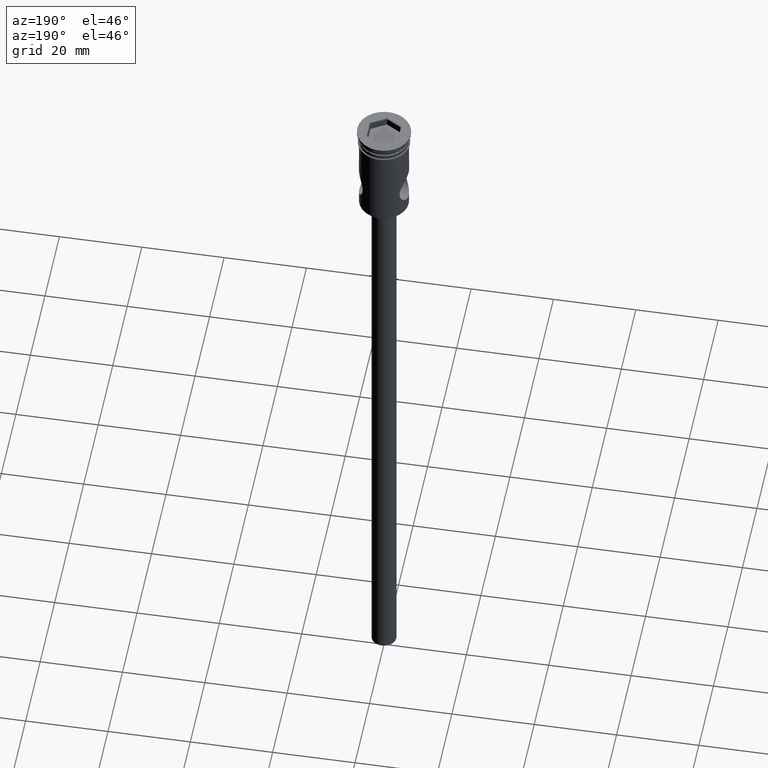
[diagram: clean part render]
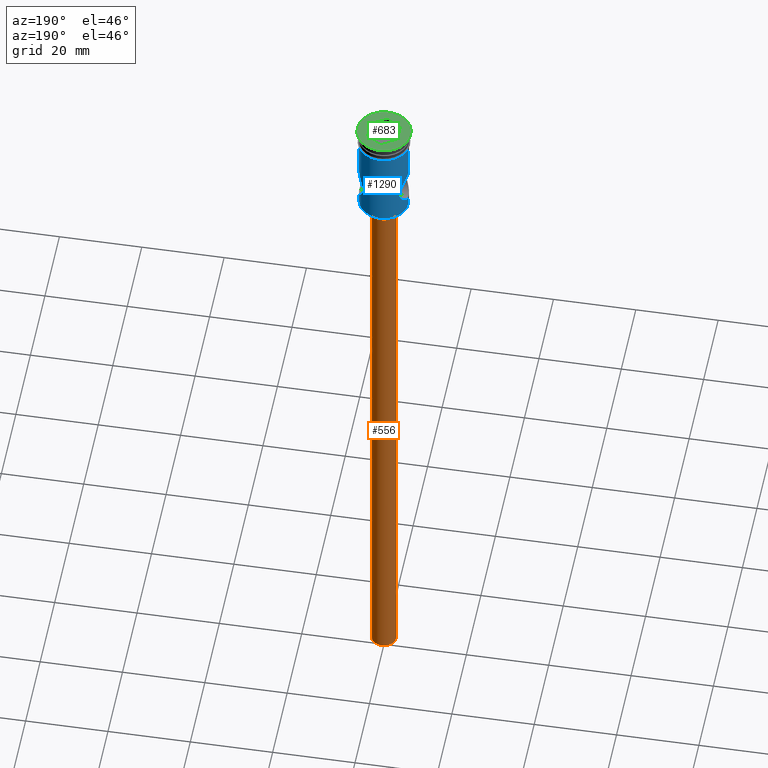
[diagram: same view with three faces highlighted in distinct colors, each labeled with its STEP entity id]
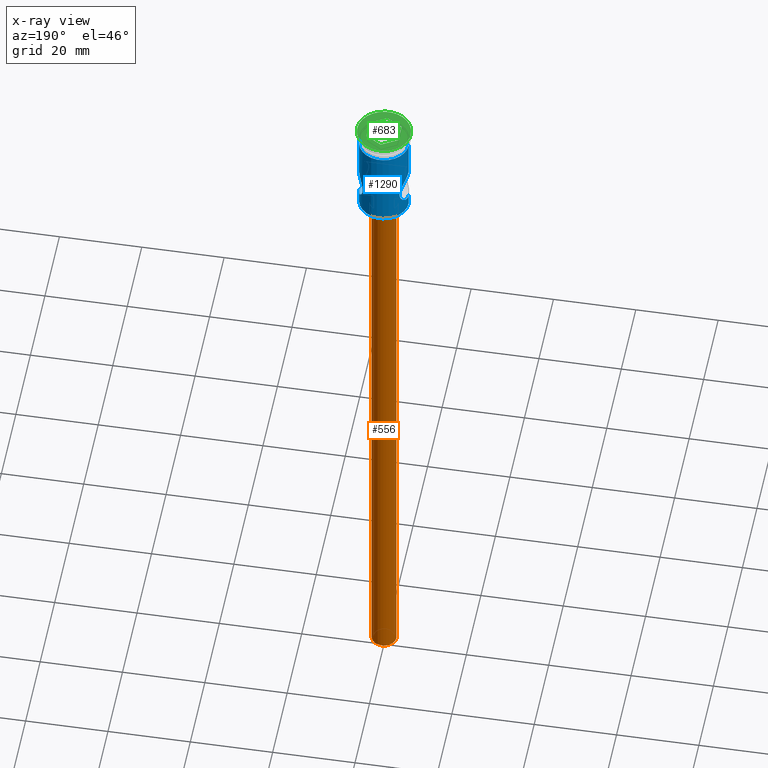
[diagram: x-ray of the same camera — body ghosted, the three highlighted faces saturated]
A machine part, auxiliary view with three faces highlighted in distinct colors.
The next image is the same camera in x-ray (body ghosted, the three faces saturated) — at least one of them is partly hidden behind the body in this view.
Their STEP definitions:

[orange] entity #556 — the highlighted cylindrical surface (edge-blend (fillet) strip) has radius 3 mm, axis along (-0, -0, 1).
#102 = AXIS2_PLACEMENT_3D ( 'NONE', #692, #599, #1062 ) ;
#104 = DIRECTION ( 'NONE',  ( 0.000000000000000000, 0.000000000000000000, -1.000000000000000000 ) ) ;
#202 = VERTEX_POINT ( 'NONE', #1242 ) ;
#206 = ORIENTED_EDGE ( 'NONE', *, *, #236, .T. ) ;
#208 = FACE_OUTER_BOUND ( 'NONE', #972, .T. ) ;
#236 = EDGE_CURVE ( 'NONE', #867, #1194, #950, .T. ) ;
#242 = ORIENTED_EDGE ( 'NONE', *, *, #1357, .F. ) ;
#243 = VECTOR ( 'NONE', #890, 1000.000000000000000 ) ;
#244 = CIRCLE ( 'NONE', #102, 3.000000000000000444 ) ;
#511 = DIRECTION ( 'NONE',  ( -0.000000000000000000, -0.000000000000000000, 1.000000000000000000 ) ) ;
#556 = ADVANCED_FACE ( 'NONE', ( #208 ), #1470, .T. ) ;
#590 = DIRECTION ( 'NONE',  ( -0.000000000000000000, -0.000000000000000000, 1.000000000000000000 ) ) ;
#599 = DIRECTION ( 'NONE',  ( 0.000000000000000000, 0.000000000000000000, -1.000000000000000000 ) ) ;
#673 = CARTESIAN_POINT ( 'NONE',  ( 0.000000000000000000, 0.000000000000000000, -174.0000000000000000 ) ) ;
#692 = CARTESIAN_POINT ( 'NONE',  ( 0.000000000000000000, 0.000000000000000000, -174.0000000000000000 ) ) ;
#737 = AXIS2_PLACEMENT_3D ( 'NONE', #673, #590, #1075 ) ;
#750 = CARTESIAN_POINT ( 'NONE',  ( -3.000000000000000444, 3.673940397442060361E-16, -174.0000000000000000 ) ) ;
#765 = VECTOR ( 'NONE', #511, 1000.000000000000000 ) ;
#802 = VERTEX_POINT ( 'NONE', #996 ) ;
#867 = VERTEX_POINT ( 'NONE', #1130 ) ;
#890 = DIRECTION ( 'NONE',  ( -0.000000000000000000, -0.000000000000000000, 1.000000000000000000 ) ) ;
#900 = EDGE_CURVE ( 'NONE', #802, #1194, #1336, .T. ) ;
#905 = ORIENTED_EDGE ( 'NONE', *, *, #1129, .T. ) ;
#950 = CIRCLE ( 'NONE', #1225, 3.000000000000000444 ) ;
#971 = ORIENTED_EDGE ( 'NONE', *, *, #900, .F. ) ;
#972 = EDGE_LOOP ( 'NONE', ( #242, #905, #206, #971 ) ) ;
#996 = CARTESIAN_POINT ( 'NONE',  ( 3.000000000000000444, 0.000000000000000000, -174.0000000000000000 ) ) ;
#1014 = DIRECTION ( 'NONE',  ( -1.000000000000000000, 0.000000000000000000, 0.000000000000000000 ) ) ;
#1062 = DIRECTION ( 'NONE',  ( -1.000000000000000000, 0.000000000000000000, 0.000000000000000000 ) ) ;
#1075 = DIRECTION ( 'NONE',  ( 1.000000000000000000, 0.000000000000000000, 0.000000000000000000 ) ) ;
#1129 = EDGE_CURVE ( 'NONE', #202, #867, #1289, .T. ) ;
#1130 = CARTESIAN_POINT ( 'NONE',  ( -3.000000000000000444, 3.673940397442060361E-16, -27.00000000000000000 ) ) ;
#1194 = VERTEX_POINT ( 'NONE', #1413 ) ;
#1225 = AXIS2_PLACEMENT_3D ( 'NONE', #1347, #104, #1014 ) ;
#1242 = CARTESIAN_POINT ( 'NONE',  ( -3.000000000000000444, 3.673940397442060361E-16, -174.0000000000000000 ) ) ;
#1289 = LINE ( 'NONE', #750, #765 ) ;
#1336 = LINE ( 'NONE', #1462, #243 ) ;
#1347 = CARTESIAN_POINT ( 'NONE',  ( 0.000000000000000000, 0.000000000000000000, -27.00000000000000000 ) ) ;
#1357 = EDGE_CURVE ( 'NONE', #202, #802, #244, .T. ) ;
#1413 = CARTESIAN_POINT ( 'NONE',  ( 3.000000000000000444, 0.000000000000000000, -27.00000000000000000 ) ) ;
#1462 = CARTESIAN_POINT ( 'NONE',  ( 3.000000000000000444, 0.000000000000000000, -174.0000000000000000 ) ) ;
#1470 = CYLINDRICAL_SURFACE ( 'NONE', #737, 3.000000000000000444 ) ;

[blue] entity #1290 — the highlighted cylindrical surface (edge-blend (fillet) strip) has radius 6 mm, axis along (-0, -0, 1).
#1 = CARTESIAN_POINT ( 'NONE',  ( 5.092719808373194823, 3.176950723007529120, -19.44358897106424067 ) ) ;
#31 = LINE ( 'NONE', #254, #240 ) ;
#36 = CARTESIAN_POINT ( 'NONE',  ( -5.478456530086702081, 2.457412205291201968, -20.16652278763330486 ) ) ;
#42 = CARTESIAN_POINT ( 'NONE',  ( -5.856852607584092318, 1.326405963621358985, -20.78272040109924745 ) ) ;
#51 = EDGE_CURVE ( 'NONE', #1027, #128, #97, .T. ) ;
#73 = EDGE_CURVE ( 'NONE', #1027, #741, #31, .T. ) ;
#88 = CARTESIAN_POINT ( 'NONE',  ( 4.904334778770656378, 3.460699021627383409, -14.97811247933654322 ) ) ;
#91 = CARTESIAN_POINT ( 'NONE',  ( -5.094941177298608181, 3.173493986384487542, -19.44836001449217733 ) ) ;
#96 = CARTESIAN_POINT ( 'NONE',  ( 5.999999999999999112, 0.1348394930680404946, -13.00000000000000355 ) ) ;
#97 = CIRCLE ( 'NONE', #429, 5.999999999999997335 ) ;
#128 = VERTEX_POINT ( 'NONE', #615 ) ;
#132 = CARTESIAN_POINT ( 'NONE',  ( 0.000000000000000000, 0.000000000000000000, -23.80000000000000782 ) ) ;
#136 = CARTESIAN_POINT ( 'NONE',  ( 6.000000000000000000, 0.000000000000000000, -3.799999999999998490 ) ) ;
#145 = DIRECTION ( 'NONE',  ( -1.000000000000000000, 0.000000000000000000, 0.000000000000000000 ) ) ;
#169 = VECTOR ( 'NONE', #238, 1000.000000000000000 ) ;
#174 = ORIENTED_EDGE ( 'NONE', *, *, #51, .T. ) ;
#186 = CARTESIAN_POINT ( 'NONE',  ( -5.909894408226808338, 1.069461442341117507, -13.13625666965422134 ) ) ;
#196 = CARTESIAN_POINT ( 'NONE',  ( 5.999999999999997335, 1.032865049536733409E-19, -13.00000000000000178 ) ) ;
#198 = CARTESIAN_POINT ( 'NONE',  ( 0.000000000000000000, 0.000000000000000000, -3.799999999999998490 ) ) ;
#207 = CARTESIAN_POINT ( 'NONE',  ( 5.191849950367996236, 3.014242200430726992, -19.64164800058794214 ) ) ;
#225 = CARTESIAN_POINT ( 'NONE',  ( 4.591041808995887763, 3.863597314276563388, -18.06934695620068965 ) ) ;
#238 = DIRECTION ( 'NONE',  ( -0.000000000000000000, -0.000000000000000000, 1.000000000000000000 ) ) ;
#240 = VECTOR ( 'NONE', #711, 1000.000000000000000 ) ;
#254 = CARTESIAN_POINT ( 'NONE',  ( 5.999999999999997335, 0.000000000000000000, 0.000000000000000000 ) ) ;
#266 = LINE ( 'NONE', #1428, #1309 ) ;
#268 = CARTESIAN_POINT ( 'NONE',  ( -4.903670365680999232, 3.461664301119384834, -14.97966456857567685 ) ) ;
#269 = EDGE_LOOP ( 'NONE', ( #174, #1397, #1084, #1442, #1307, #1405, #298, #1363 ) ) ;
#276 = CARTESIAN_POINT ( 'NONE',  ( -4.695721265758814766, 3.735538961856250673, -15.56388279734573032 ) ) ;
#291 = CARTESIAN_POINT ( 'NONE',  ( -5.981295349059706723, 0.5428679769166538938, -13.02790298971888028 ) ) ;
#298 = ORIENTED_EDGE ( 'NONE', *, *, #1233, .F. ) ;
#300 = FACE_OUTER_BOUND ( 'NONE', #269, .T. ) ;
#309 = CARTESIAN_POINT ( 'NONE',  ( 5.995459719443724467, 0.2695386314927124549, -13.00680060135633376 ) ) ;
#317 = CARTESIAN_POINT ( 'NONE',  ( -5.192588128681414616, 3.012973207551337129, -19.64309212195293952 ) ) ;
#321 = CARTESIAN_POINT ( 'NONE',  ( 5.476259375248750061, 2.462490082215233578, -20.16276605017705492 ) ) ;
#325 = VERTEX_POINT ( 'NONE', #418 ) ;
#329 = CARTESIAN_POINT ( 'NONE',  ( 4.904969006695426792, 3.459781783056854465, -19.02337662573056321 ) ) ;
#340 = CARTESIAN_POINT ( 'NONE',  ( -4.497954016143988376, 3.971583117973677801, -17.54574033674491318 ) ) ;
#364 = EDGE_CURVE ( 'NONE', #823, #453, #1124, .T. ) ;
#392 = LINE ( 'NONE', #1296, #1162 ) ;
#400 = DIRECTION ( 'NONE',  ( -0.000000000000000000, -0.000000000000000000, 1.000000000000000000 ) ) ;
#418 = CARTESIAN_POINT ( 'NONE',  ( 5.999999999999997335, 1.032865049536733409E-19, -13.00000000000000178 ) ) ;
#424 = CYLINDRICAL_SURFACE ( 'NONE', #1163, 5.999999999999997335 ) ;
#429 = AXIS2_PLACEMENT_3D ( 'NONE', #132, #1172, #145 ) ;
#431 = CARTESIAN_POINT ( 'NONE',  ( 5.726539468168462044, 1.808257897405588066, -13.42234802356430556 ) ) ;
#432 = CARTESIAN_POINT ( 'NONE',  ( -5.189877563605834965, 3.017637752822129205, -14.36220871751616635 ) ) ;
#453 = VERTEX_POINT ( 'NONE', #940 ) ;
#459 = CARTESIAN_POINT ( 'NONE',  ( -4.566410052139553422, 3.892191516930989970, -16.06790164049536074 ) ) ;
#472 = LINE ( 'NONE', #1278, #169 ) ;
#496 = CARTESIAN_POINT ( 'NONE',  ( -5.910224399078535029, 1.067455424808948061, -20.86424616908553276 ) ) ;
#505 = CARTESIAN_POINT ( 'NONE',  ( 5.999999999999997335, 0.000000000000000000, -21.00000000000000355 ) ) ;
#506 = CARTESIAN_POINT ( 'NONE',  ( 5.999999999999997335, 0.000000000000000000, -21.00000000000000355 ) ) ;
#522 = CARTESIAN_POINT ( 'NONE',  ( -5.726042320256659046, 1.810021776766353563, -13.42313354859388497 ) ) ;
#530 = CARTESIAN_POINT ( 'NONE',  ( 0.000000000000000000, 0.000000000000000000, 0.000000000000000000 ) ) ;
#534 = CARTESIAN_POINT ( 'NONE',  ( 4.589371484154252556, 3.865580797907775423, -15.93709879797100193 ) ) ;
#553 = CARTESIAN_POINT ( 'NONE',  ( 5.383657517074641241, 2.656633614838565194, -13.99882376761189029 ) ) ;
#558 = CARTESIAN_POINT ( 'NONE',  ( 4.521451790501867407, 3.944329598407792847, -17.67822252913732228 ) ) ;
#562 = CARTESIAN_POINT ( 'NONE',  ( -4.471969905858020233, 4.000185648662160531, -16.72948623710962224 ) ) ;
#572 = CARTESIAN_POINT ( 'NONE',  ( -4.905092851350609351, 3.459704293921746832, -19.02385203036241279 ) ) ;
#592 = EDGE_CURVE ( 'NONE', #1020, #843, #1288, .T. ) ;
#607 = CARTESIAN_POINT ( 'NONE',  ( -5.726721313513245981, 1.807412029573770118, -20.57793071042114619 ) ) ;
#615 = CARTESIAN_POINT ( 'NONE',  ( -5.999999999999997335, 7.347880794884116778E-16, -23.80000000000000782 ) ) ;
#636 = CARTESIAN_POINT ( 'NONE',  ( -5.857856019569840811, 1.322596816769210371, -13.21570480751897314 ) ) ;
#641 = AXIS2_PLACEMENT_3D ( 'NONE', #198, #400, #1446 ) ;
#653 = EDGE_CURVE ( 'NONE', #325, #1020, #392, .T. ) ;
#655 = CARTESIAN_POINT ( 'NONE',  ( 4.472242783135714106, 3.999880562432159614, -17.13916142668632858 ) ) ;
#662 = CARTESIAN_POINT ( 'NONE',  ( 5.647456945233584769, 2.039167636317595456, -13.54932708310013645 ) ) ;
#679 = CARTESIAN_POINT ( 'NONE',  ( 5.857601659980624653, 1.323462767520508176, -13.21610827440704128 ) ) ;
#688 = CARTESIAN_POINT ( 'NONE',  ( -4.815345988703960245, 3.581725270876521705, -18.79943117160748400 ) ) ;
#711 = DIRECTION ( 'NONE',  ( -0.000000000000000000, -0.000000000000000000, 1.000000000000000000 ) ) ;
#724 = CARTESIAN_POINT ( 'NONE',  ( -5.649709804834211369, 2.033012498713174576, -20.45435978024745438 ) ) ;
#741 = VERTEX_POINT ( 'NONE', #506 ) ;
#743 = EDGE_CURVE ( 'NONE', #823, #843, #266, .T. ) ;
#745 = DIRECTION ( 'NONE',  ( -0.000000000000000000, -0.000000000000000000, 1.000000000000000000 ) ) ;
#747 = CARTESIAN_POINT ( 'NONE',  ( -5.092437400807711789, 3.177449308448081489, -14.55690956341038245 ) ) ;
#758 = CARTESIAN_POINT ( 'NONE',  ( 4.658800709564930642, 3.783111596241941488, -18.32471878455886838 ) ) ;
#767 = CARTESIAN_POINT ( 'NONE',  ( 4.655957912614350214, 3.786615440986035974, -15.68502588106870199 ) ) ;
#768 = CARTESIAN_POINT ( 'NONE',  ( -5.476104105474132844, 2.462661959051749783, -13.83753213007002181 ) ) ;
#773 = CARTESIAN_POINT ( 'NONE',  ( 4.496571596818668581, 3.973146032982571185, -16.46466415118837645 ) ) ;
#797 = CARTESIAN_POINT ( 'NONE',  ( -4.590872927876621823, 3.863799755992654905, -18.06881075205813403 ) ) ;
#803 = B_SPLINE_CURVE_WITH_KNOTS ( 'NONE', 3,
 ( #505, #964, #1308, #1240, #1000, #1021, #1349, #321, #1127, #207, #1, #329, #1223, #758, #225, #558, #895, #1008, #655, #1121, #773, #534, #767, #870, #88, #1358, #1258, #553, #1146, #662, #431, #679, #1473, #1016, #888, #309, #96, #196 ),
 .UNSPECIFIED., .F., .F.,
 ( 4, 2, 2, 2, 2, 2, 2, 2, 2, 2, 2, 2, 2, 2, 2, 2, 2, 2, 4 ),
 ( 0.000000000000000000, 0.0008079931812297244925, 0.001615986362459448551, 0.002423979543689172393, 0.003231972724918896669, 0.004039965906148620944, 0.004847959087378344786, 0.005655952268608070363, 0.006059948859222932284, 0.006463945449837794205, 0.007271938631067518047, 0.008079931812297241889, 0.008887924993526967465, 0.009695918174756691307, 0.01050391135598641688, 0.01131190453721614073, 0.01211989771844586630, 0.01252389430906072736, 0.01292789089967558841 ),
 .UNSPECIFIED. ) ;
#823 = VERTEX_POINT ( 'NONE', #1024 ) ;
#826 = CARTESIAN_POINT ( 'NONE',  ( -5.383857059222176389, 2.656136703825481504, -20.00147985586160004 ) ) ;
#843 = VERTEX_POINT ( 'NONE', #1351 ) ;
#847 = DIRECTION ( 'NONE',  ( -0.000000000000000000, -0.000000000000000000, 1.000000000000000000 ) ) ;
#870 = CARTESIAN_POINT ( 'NONE',  ( 4.813287987224462938, 3.584502662014734664, -15.20585560854699558 ) ) ;
#888 = CARTESIAN_POINT ( 'NONE',  ( 5.977293684551372444, 0.5386543696670914594, -13.03412758888618939 ) ) ;
#895 = CARTESIAN_POINT ( 'NONE',  ( 4.503329929757906136, 3.964891535778145570, -17.54583673630848750 ) ) ;
#897 = CARTESIAN_POINT ( 'NONE',  ( -4.472303672293369559, 3.999812486286544289, -17.27597643780235259 ) ) ;
#940 = CARTESIAN_POINT ( 'NONE',  ( -5.999999999999997335, 0.000000000000000000, -21.00000000000000000 ) ) ;
#964 = CARTESIAN_POINT ( 'NONE',  ( 5.999999999999996447, 0.2736934833754733898, -21.00000000000001066 ) ) ;
#969 = CARTESIAN_POINT ( 'NONE',  ( -5.999999999999999112, 0.2733318867810531350, -21.00000000000000000 ) ) ;
#995 = DIRECTION ( 'NONE',  ( -0.000000000000000000, -0.000000000000000000, 1.000000000000000000 ) ) ;
#1000 = CARTESIAN_POINT ( 'NONE',  ( 5.857462785930378502, 1.323879775164644279, -20.78366906037870621 ) ) ;
#1008 = CARTESIAN_POINT ( 'NONE',  ( 4.478683235531862650, 3.992711086781057350, -17.27669624262845005 ) ) ;
#1016 = CARTESIAN_POINT ( 'NONE',  ( 5.963516332756118032, 0.6739983983561916858, -13.05488329690675364 ) ) ;
#1020 = VERTEX_POINT ( 'NONE', #136 ) ;
#1021 = CARTESIAN_POINT ( 'NONE',  ( 5.726993910597675708, 1.806673378235915450, -20.57837121075087694 ) ) ;
#1024 = CARTESIAN_POINT ( 'NONE',  ( -5.999999999999997335, 7.346847929928983029E-16, -13.00000000000000178 ) ) ;
#1027 = VERTEX_POINT ( 'NONE', #1065 ) ;
#1065 = CARTESIAN_POINT ( 'NONE',  ( 5.999999999999997335, 0.000000000000000000, -23.80000000000000782 ) ) ;
#1084 = ORIENTED_EDGE ( 'NONE', *, *, #364, .F. ) ;
#1098 = CARTESIAN_POINT ( 'NONE',  ( -5.999999999999997335, 0.000000000000000000, -21.00000000000000000 ) ) ;
#1121 = CARTESIAN_POINT ( 'NONE',  ( 4.471926352484667966, 4.000234342895624629, -16.73210661165612123 ) ) ;
#1123 = CARTESIAN_POINT ( 'NONE',  ( -4.658564655011904421, 3.783396392401493724, -18.32386562586674827 ) ) ;
#1124 = B_SPLINE_CURVE_WITH_KNOTS ( 'NONE', 3,
 ( #1320, #1328, #291, #186, #636, #522, #1224, #768, #1460, #432, #747, #268, #1417, #276, #1203, #1157, #459, #1464, #562, #897, #340, #797, #1123, #688, #572, #91, #317, #826, #36, #724, #607, #42, #496, #1219, #969, #1098 ),
 .UNSPECIFIED., .F., .F.,
 ( 4, 2, 2, 2, 2, 2, 2, 2, 2, 2, 2, 2, 2, 2, 2, 2, 2, 4 ),
 ( 0.01292789089967558668, 0.01373481658167571492, 0.01454174226367584317, 0.01534866794567596969, 0.01615559362767609794, 0.01696251930967622445, 0.01776944499167635444, 0.01817290783267641943, 0.01857637067367648442, 0.01938329635567661441, 0.02019022203767674092, 0.02099714771967687091, 0.02180407340167700089, 0.02261099908367712741, 0.02341792476567725739, 0.02422485044767738738, 0.02503177612967751736, 0.02583870181167764735 ),
 .UNSPECIFIED. ) ;
#1127 = CARTESIAN_POINT ( 'NONE',  ( 5.383168773068585544, 2.657528158016941866, -20.00025070472699440 ) ) ;
#1146 = CARTESIAN_POINT ( 'NONE',  ( 5.476434227958205447, 2.461837270032280145, -13.83697842493742947 ) ) ;
#1157 = CARTESIAN_POINT ( 'NONE',  ( -4.594981970458708709, 3.858589710197853240, -15.93762721160692664 ) ) ;
#1162 = VECTOR ( 'NONE', #847, 1000.000000000000000 ) ;
#1163 = AXIS2_PLACEMENT_3D ( 'NONE', #530, #995, #1452 ) ;
#1172 = DIRECTION ( 'NONE',  ( -0.000000000000000000, -0.000000000000000000, 1.000000000000000000 ) ) ;
#1203 = CARTESIAN_POINT ( 'NONE',  ( -4.659573210257435427, 3.780337466250410561, -15.68607491293214729 ) ) ;
#1219 = CARTESIAN_POINT ( 'NONE',  ( -5.981315622377779029, 0.5422886287917135784, -20.97212570072114346 ) ) ;
#1223 = CARTESIAN_POINT ( 'NONE',  ( 4.815777407978871771, 3.581151401136684953, -18.80060207983888887 ) ) ;
#1224 = CARTESIAN_POINT ( 'NONE',  ( -5.647852088979878005, 2.038182248857265844, -13.54866401616081362 ) ) ;
#1233 = EDGE_CURVE ( 'NONE', #741, #325, #803, .T. ) ;
#1240 = CARTESIAN_POINT ( 'NONE',  ( 5.910558363407836246, 1.065472474882099840, -20.86475527808674713 ) ) ;
#1258 = CARTESIAN_POINT ( 'NONE',  ( 5.191140967328530031, 3.015547360259486442, -14.35969034782403853 ) ) ;
#1278 = CARTESIAN_POINT ( 'NONE',  ( -5.999999999999997335, 7.347880794884116778E-16, 0.000000000000000000 ) ) ;
#1288 = CIRCLE ( 'NONE', #641, 6.000000000000000000 ) ;
#1290 = ADVANCED_FACE ( 'NONE', ( #300 ), #424, .T. ) ;
#1296 = CARTESIAN_POINT ( 'NONE',  ( 5.999999999999997335, 0.000000000000000000, 0.000000000000000000 ) ) ;
#1307 = ORIENTED_EDGE ( 'NONE', *, *, #592, .F. ) ;
#1308 = CARTESIAN_POINT ( 'NONE',  ( 5.981377723958400061, 0.5413430384848008092, -20.97221760090189591 ) ) ;
#1309 = VECTOR ( 'NONE', #745, 1000.000000000000000 ) ;
#1320 = CARTESIAN_POINT ( 'NONE',  ( -5.999999999999997335, 7.346847929928983029E-16, -13.00000000000000178 ) ) ;
#1328 = CARTESIAN_POINT ( 'NONE',  ( -5.999999999999998224, 0.2693226933892789443, -13.00000000000000178 ) ) ;
#1345 = EDGE_CURVE ( 'NONE', #128, #453, #472, .T. ) ;
#1349 = CARTESIAN_POINT ( 'NONE',  ( 5.649252793255032934, 2.034506580944977827, -20.45365450866940193 ) ) ;
#1351 = CARTESIAN_POINT ( 'NONE',  ( -6.000000000000000000, 7.347880794884119736E-16, -3.799999999999998490 ) ) ;
#1358 = CARTESIAN_POINT ( 'NONE',  ( 5.092532074683503218, 3.177271535275488112, -14.55676189133447451 ) ) ;
#1363 = ORIENTED_EDGE ( 'NONE', *, *, #73, .F. ) ;
#1397 = ORIENTED_EDGE ( 'NONE', *, *, #1345, .T. ) ;
#1405 = ORIENTED_EDGE ( 'NONE', *, *, #653, .F. ) ;
#1417 = CARTESIAN_POINT ( 'NONE',  ( -4.812980838828971208, 3.584886833645904769, -15.20686804412651760 ) ) ;
#1428 = CARTESIAN_POINT ( 'NONE',  ( -5.999999999999997335, 7.347880794884116778E-16, 0.000000000000000000 ) ) ;
#1442 = ORIENTED_EDGE ( 'NONE', *, *, #743, .T. ) ;
#1446 = DIRECTION ( 'NONE',  ( 1.000000000000000000, 0.000000000000000000, 0.000000000000000000 ) ) ;
#1452 = DIRECTION ( 'NONE',  ( 1.000000000000000000, 0.000000000000000000, 0.000000000000000000 ) ) ;
#1460 = CARTESIAN_POINT ( 'NONE',  ( -5.381440153112927227, 2.661027735845785891, -14.00283269631731109 ) ) ;
#1464 = CARTESIAN_POINT ( 'NONE',  ( -4.496976719000948641, 3.972684566356397440, -16.46183091757618655 ) ) ;
#1473 = CARTESIAN_POINT ( 'NONE',  ( 5.909734172871756286, 1.070628588321906216, -13.13649990372544885 ) ) ;

[green] entity #683 — the highlighted planar face has unit normal (0, -0, 1).
#24 = VECTOR ( 'NONE', #638, 1000.000000000000000 ) ;
#41 = CARTESIAN_POINT ( 'NONE',  ( -1.088215527527321583E-15, 4.503332099679073330, 0.000000000000000000 ) ) ;
#53 = VERTEX_POINT ( 'NONE', #583 ) ;
#55 = LINE ( 'NONE', #966, #99 ) ;
#80 = CARTESIAN_POINT ( 'NONE',  ( 3.899999999999993250, -2.251666049839539330, 0.000000000000000000 ) ) ;
#99 = VECTOR ( 'NONE', #761, 1000.000000000000000 ) ;
#109 = EDGE_CURVE ( 'NONE', #605, #53, #1298, .T. ) ;
#163 = AXIS2_PLACEMENT_3D ( 'NONE', #1387, #359, #1039 ) ;
#170 = FACE_OUTER_BOUND ( 'NONE', #414, .T. ) ;
#260 = VERTEX_POINT ( 'NONE', #1394 ) ;
#267 = EDGE_CURVE ( 'NONE', #962, #605, #779, .T. ) ;
#272 = DIRECTION ( 'NONE',  ( 0.000000000000000000, -0.000000000000000000, 1.000000000000000000 ) ) ;
#278 = VECTOR ( 'NONE', #1047, 1000.000000000000114 ) ;
#301 = DIRECTION ( 'NONE',  ( 1.000000000000000000, 0.000000000000000000, 0.000000000000000000 ) ) ;
#304 = CARTESIAN_POINT ( 'NONE',  ( 3.799999999999997602, 2.309401076758497595, 0.000000000000000000 ) ) ;
#359 = DIRECTION ( 'NONE',  ( -0.000000000000000000, -0.000000000000000000, 1.000000000000000000 ) ) ;
#394 = EDGE_CURVE ( 'NONE', #1269, #697, #1384, .T. ) ;
#411 = CARTESIAN_POINT ( 'NONE',  ( 6.500000000000000000, 0.000000000000000000, 0.000000000000000000 ) ) ;
#414 = EDGE_LOOP ( 'NONE', ( #1180, #799 ) ) ;
#416 = EDGE_CURVE ( 'NONE', #697, #1036, #906, .T. ) ;
#425 = DIRECTION ( 'NONE',  ( -0.000000000000000000, -0.000000000000000000, 1.000000000000000000 ) ) ;
#462 = ORIENTED_EDGE ( 'NONE', *, *, #603, .T. ) ;
#477 = EDGE_CURVE ( 'NONE', #625, #260, #1410, .T. ) ;
#484 = ORIENTED_EDGE ( 'NONE', *, *, #416, .T. ) ;
#486 = CARTESIAN_POINT ( 'NONE',  ( -3.899999999999994138, -2.251666049839537553, 0.000000000000000000 ) ) ;
#509 = ORIENTED_EDGE ( 'NONE', *, *, #709, .T. ) ;
#512 = LINE ( 'NONE', #729, #1227 ) ;
#537 = CARTESIAN_POINT ( 'NONE',  ( 0.000000000000000000, 0.000000000000000000, 0.000000000000000000 ) ) ;
#542 = AXIS2_PLACEMENT_3D ( 'NONE', #1422, #272, #301 ) ;
#565 = CARTESIAN_POINT ( 'NONE',  ( -3.799999999999998046, -2.309401076758498039, 0.000000000000000000 ) ) ;
#583 = CARTESIAN_POINT ( 'NONE',  ( 3.899999999999994138, 2.251666049839536665, 0.000000000000000000 ) ) ;
#603 = EDGE_CURVE ( 'NONE', #1036, #962, #512, .T. ) ;
#605 = VERTEX_POINT ( 'NONE', #41 ) ;
#625 = VERTEX_POINT ( 'NONE', #411 ) ;
#638 = DIRECTION ( 'NONE',  ( 0.8660254037844387076, -0.4999999999999998335, 0.000000000000000000 ) ) ;
#645 = CIRCLE ( 'NONE', #1037, 6.500000000000000000 ) ;
#671 = CARTESIAN_POINT ( 'NONE',  ( -0.09999999999999756306, 4.445597072760112844, 0.000000000000000000 ) ) ;
#683 = ADVANCED_FACE ( 'NONE', ( #1216, #170 ), #873, .T. ) ;
#697 = VERTEX_POINT ( 'NONE', #1311 ) ;
#709 = EDGE_CURVE ( 'NONE', #53, #1269, #55, .T. ) ;
#729 = CARTESIAN_POINT ( 'NONE',  ( -3.899999999999994138, 2.136195996001614361, 0.000000000000000000 ) ) ;
#761 = DIRECTION ( 'NONE',  ( -2.030154863158322842E-16, -1.000000000000000000, 0.000000000000000000 ) ) ;
#779 = LINE ( 'NONE', #671, #976 ) ;
#792 = ORIENTED_EDGE ( 'NONE', *, *, #267, .T. ) ;
#799 = ORIENTED_EDGE ( 'NONE', *, *, #858, .T. ) ;
#833 = VECTOR ( 'NONE', #1030, 1000.000000000000000 ) ;
#858 = EDGE_CURVE ( 'NONE', #260, #625, #645, .T. ) ;
#873 = PLANE ( 'NONE',  #542 ) ;
#906 = LINE ( 'NONE', #565, #833 ) ;
#913 = DIRECTION ( 'NONE',  ( 0.8660254037844385966, 0.4999999999999999445, 0.000000000000000000 ) ) ;
#944 = ORIENTED_EDGE ( 'NONE', *, *, #394, .T. ) ;
#962 = VERTEX_POINT ( 'NONE', #1375 ) ;
#966 = CARTESIAN_POINT ( 'NONE',  ( 3.899999999999993250, -2.136195996001616138, 0.000000000000000000 ) ) ;
#976 = VECTOR ( 'NONE', #913, 1000.000000000000114 ) ;
#1030 = DIRECTION ( 'NONE',  ( -0.8660254037844387076, 0.4999999999999998890, 0.000000000000000000 ) ) ;
#1036 = VERTEX_POINT ( 'NONE', #486 ) ;
#1037 = AXIS2_PLACEMENT_3D ( 'NONE', #537, #425, #1149 ) ;
#1039 = DIRECTION ( 'NONE',  ( 1.000000000000000000, 0.000000000000000000, 0.000000000000000000 ) ) ;
#1047 = DIRECTION ( 'NONE',  ( -0.8660254037844388186, -0.4999999999999997780, 0.000000000000000000 ) ) ;
#1149 = DIRECTION ( 'NONE',  ( 1.000000000000000000, 0.000000000000000000, 0.000000000000000000 ) ) ;
#1180 = ORIENTED_EDGE ( 'NONE', *, *, #477, .T. ) ;
#1216 = FACE_BOUND ( 'NONE', #1285, .T. ) ;
#1227 = VECTOR ( 'NONE', #1435, 1000.000000000000000 ) ;
#1269 = VERTEX_POINT ( 'NONE', #80 ) ;
#1285 = EDGE_LOOP ( 'NONE', ( #484, #462, #792, #1425, #509, #944 ) ) ;
#1298 = LINE ( 'NONE', #304, #24 ) ;
#1311 = CARTESIAN_POINT ( 'NONE',  ( 5.124951389194159977E-16, -4.503332099679074219, 0.000000000000000000 ) ) ;
#1375 = CARTESIAN_POINT ( 'NONE',  ( -3.899999999999994138, 2.251666049839537109, 0.000000000000000000 ) ) ;
#1384 = LINE ( 'NONE', #1476, #278 ) ;
#1387 = CARTESIAN_POINT ( 'NONE',  ( 0.000000000000000000, 0.000000000000000000, 0.000000000000000000 ) ) ;
#1394 = CARTESIAN_POINT ( 'NONE',  ( -6.500000000000000000, 7.960204194457795477E-16, 0.000000000000000000 ) ) ;
#1410 = CIRCLE ( 'NONE', #163, 6.500000000000000000 ) ;
#1422 = CARTESIAN_POINT ( 'NONE',  ( 0.000000000000000000, 0.000000000000000000, 0.000000000000000000 ) ) ;
#1425 = ORIENTED_EDGE ( 'NONE', *, *, #109, .T. ) ;
#1435 = DIRECTION ( 'NONE',  ( 0.000000000000000000, 1.000000000000000000, 0.000000000000000000 ) ) ;
#1476 = CARTESIAN_POINT ( 'NONE',  ( 0.09999999999999689693, -4.445597072760113733, 0.000000000000000000 ) ) ;